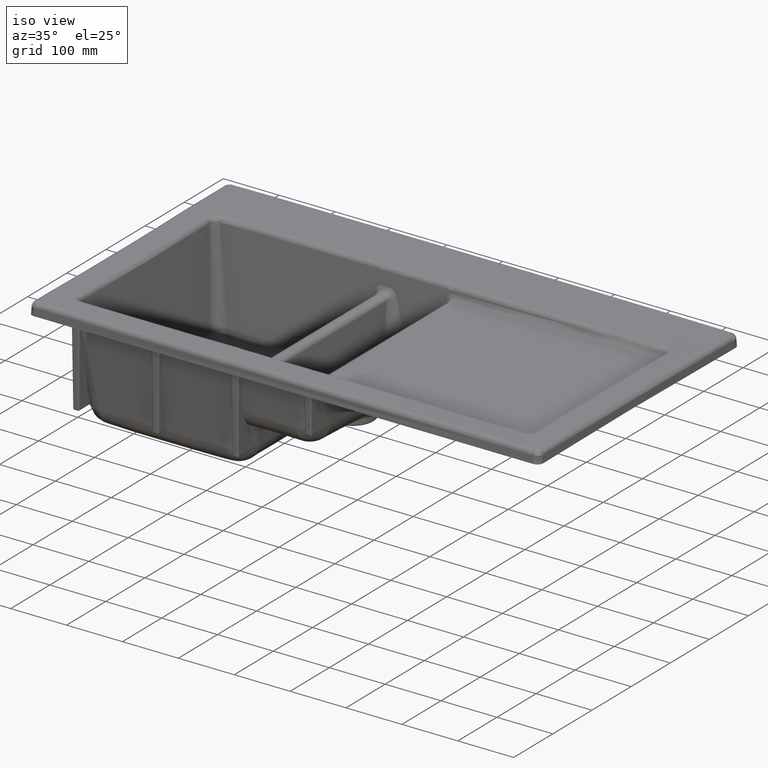
[diagram: clean part render]
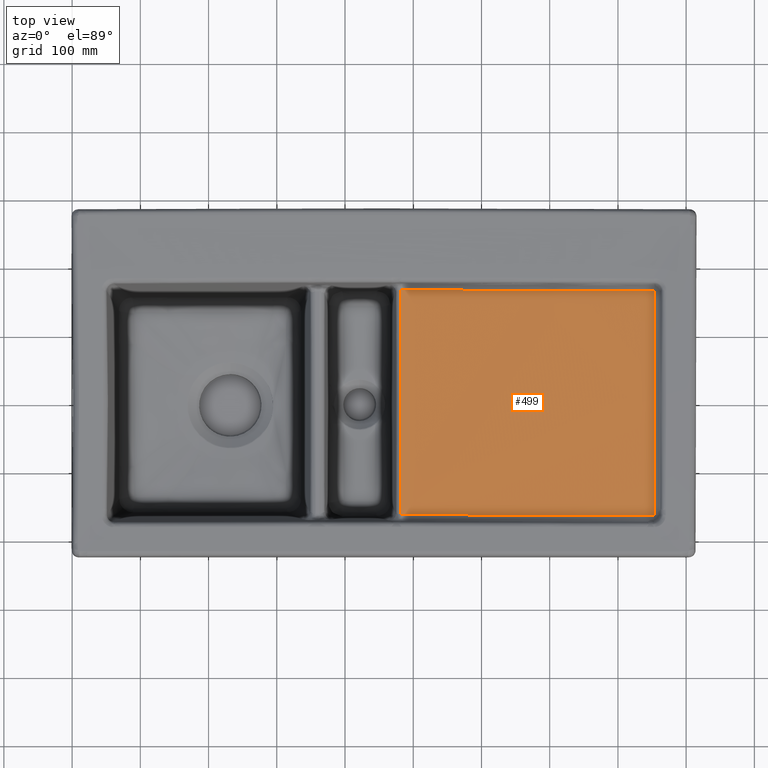
[diagram: tour spotlight — one face highlighted and labeled with its STEP entity id]
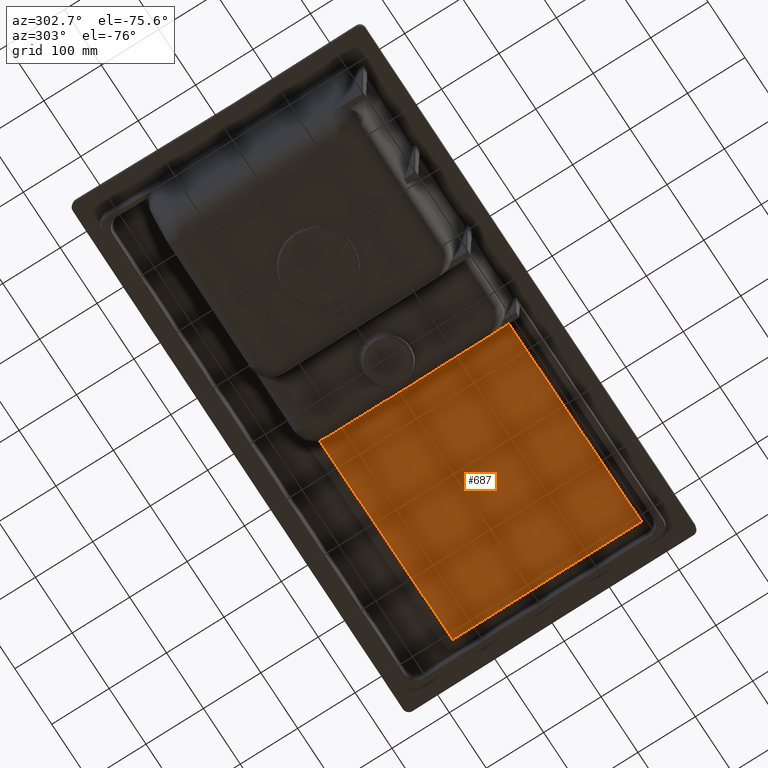
[diagram: tour spotlight — one face highlighted and labeled with its STEP entity id]
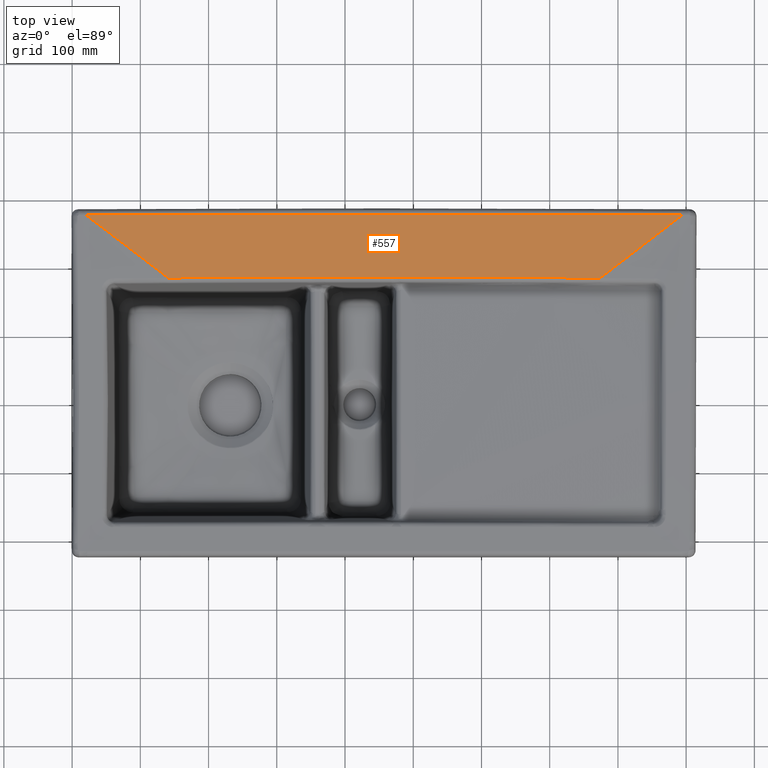
[diagram: tour spotlight — one face highlighted and labeled with its STEP entity id]
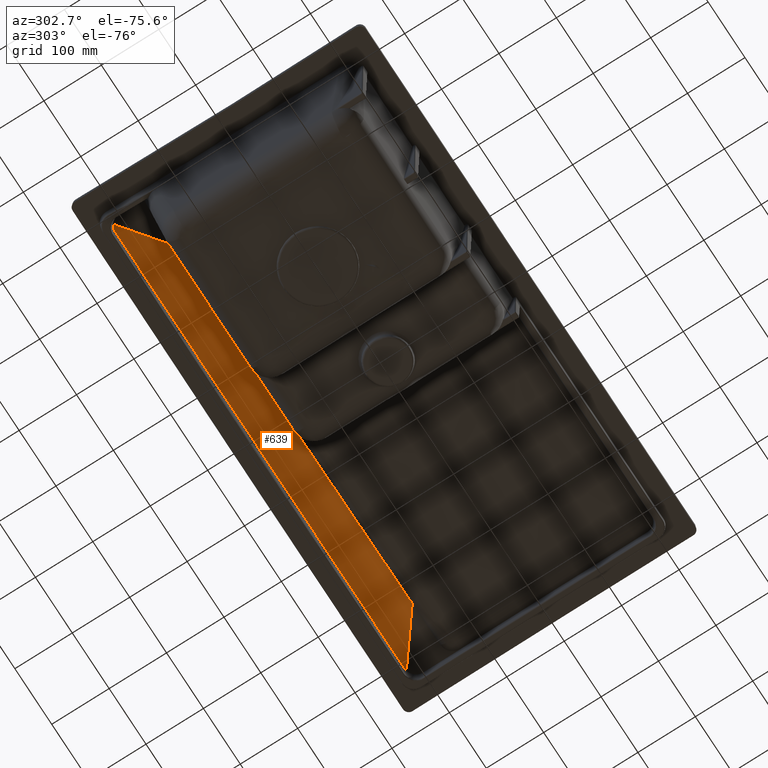
[diagram: tour spotlight — one face highlighted and labeled with its STEP entity id]
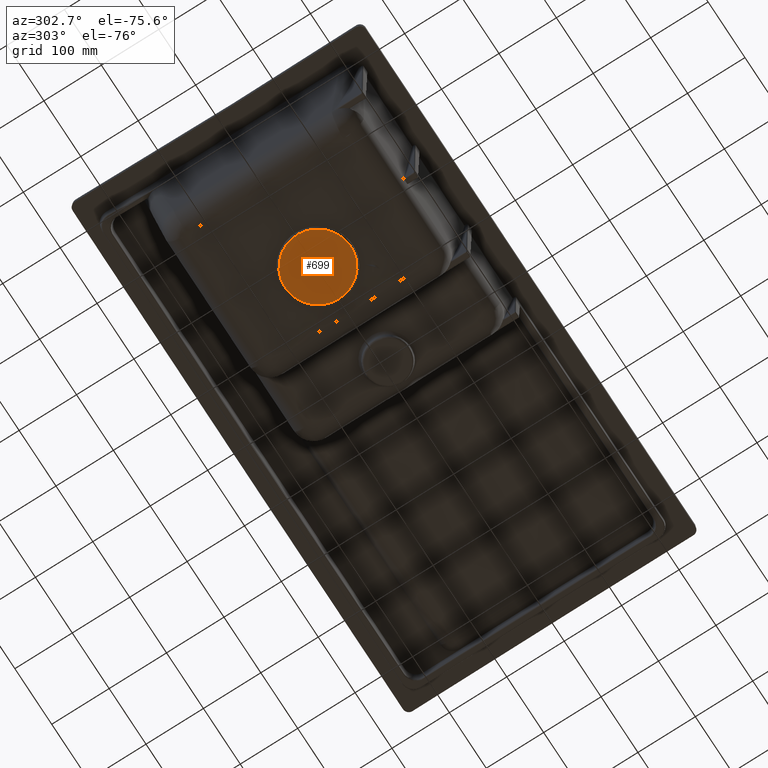
[diagram: tour spotlight — one face highlighted and labeled with its STEP entity id]
A machine part: a face-by-face anatomy tour. The part has 317 B-rep faces; the first image is the clean iso view, then the 5 largest visible faces are spotlighted one at a time (largest first), each with its STEP entity span.

Face 1 — top view, entity #499. In plain terms, the highlighted face is a freeform B-spline surface patch.
Definition (entity closure, byte-faithful):
#283=(
BOUNDED_CURVE()
B_SPLINE_CURVE(3,(#8793,#8794,#8795,#8796,#8797,#8798),.UNSPECIFIED.,.F.,
 .F.)
B_SPLINE_CURVE_WITH_KNOTS((4,2,4),(0.,0.499999999309941,1.),
 .UNSPECIFIED.)
CURVE()
GEOMETRIC_REPRESENTATION_ITEM()
RATIONAL_B_SPLINE_CURVE((0.999999451693644,0.999999453716712,0.999999454869606,
0.999999454825756,0.999999453621752,0.999999451587987))
REPRESENTATION_ITEM('')
);
#499=ADVANCED_FACE('',(#955),#779,.T.);
#779=B_SPLINE_SURFACE_WITH_KNOTS('',3,1,((#10570,#10571),(#10572,#10573),
(#10574,#10575),(#10576,#10577),(#10578,#10579),(#10580,#10581),(#10582,
#10583),(#10584,#10585),(#10586,#10587),(#10588,#10589),(#10590,#10591),
(#10592,#10593),(#10594,#10595)),.UNSPECIFIED.,.F.,.F.,.F.,(4,1,1,1,1,1,
1,1,1,1,4),(2,2),(0.,0.0145762176869947,0.109681215793361,0.204786213899727,
0.39499621011246,0.585206206325193,0.775416202537926,0.870521200644292,
0.918073699697475,0.965626198750658,1.),(0.,1.),.UNSPECIFIED.);
#955=FACE_OUTER_BOUND('',#1276,.T.);
#1276=EDGE_LOOP('',(#1813,#1814,#1815,#1816,#1817,#1818,#1819));
#1813=ORIENTED_EDGE('',*,*,#3737,.T.);
#1814=ORIENTED_EDGE('',*,*,#3738,.T.);
#1815=ORIENTED_EDGE('',*,*,#3736,.F.);
#1816=ORIENTED_EDGE('',*,*,#3680,.F.);
#1817=ORIENTED_EDGE('',*,*,#3739,.T.);
#1818=ORIENTED_EDGE('',*,*,#3740,.T.);
#1819=ORIENTED_EDGE('',*,*,#3741,.T.);
#3173=VERTEX_POINT('',#8799);
#3174=VERTEX_POINT('',#8800);
#3201=VERTEX_POINT('',#10503);
#3204=VERTEX_POINT('',#10540);
#3205=VERTEX_POINT('',#10541);
#3206=VERTEX_POINT('',#10550);
#3207=VERTEX_POINT('',#10555);
#3680=EDGE_CURVE('',#3173,#3174,#283,.T.);
#3736=EDGE_CURVE('',#3174,#3201,#4476,.T.);
#3737=EDGE_CURVE('',#3204,#3205,#4477,.T.);
#3738=EDGE_CURVE('',#3205,#3201,#4478,.T.);
#3739=EDGE_CURVE('',#3173,#3206,#4479,.T.);
#3740=EDGE_CURVE('',#3206,#3207,#4480,.T.);
#3741=EDGE_CURVE('',#3207,#3204,#4481,.T.);
#4476=B_SPLINE_CURVE_WITH_KNOTS('',3,(#10514,#10515,#10516,#10517),
 .UNSPECIFIED.,.F.,.F.,(4,4),(0.,1.),.UNSPECIFIED.);
#4477=B_SPLINE_CURVE_WITH_KNOTS('',3,(#10536,#10537,#10538,#10539),
 .UNSPECIFIED.,.F.,.F.,(4,4),(0.,1.),.UNSPECIFIED.);
#4478=B_SPLINE_CURVE_WITH_KNOTS('',3,(#10542,#10543,#10544,#10545),
 .UNSPECIFIED.,.F.,.F.,(4,4),(0.,1.),.UNSPECIFIED.);
#4479=B_SPLINE_CURVE_WITH_KNOTS('',3,(#10546,#10547,#10548,#10549),
 .UNSPECIFIED.,.F.,.F.,(4,4),(0.,1.),.UNSPECIFIED.);
#4480=B_SPLINE_CURVE_WITH_KNOTS('',3,(#10551,#10552,#10553,#10554),
 .UNSPECIFIED.,.F.,.F.,(4,4),(0.,1.),.UNSPECIFIED.);
#4481=B_SPLINE_CURVE_WITH_KNOTS('',3,(#10556,#10557,#10558,#10559,#10560,
#10561,#10562,#10563,#10564,#10565,#10566,#10567,#10568,#10569),
 .UNSPECIFIED.,.F.,.F.,(4,2,2,2,2,2,4),(0.,0.125,0.25,0.5,0.75,0.875,1.),
 .UNSPECIFIED.);
#8793=CARTESIAN_POINT('',(-17.7918068542279,-163.488346020045,-21.3578437896059));
#8794=CARTESIAN_POINT('',(-17.8065437855809,-108.615039346333,-21.3438002995863));
#8795=CARTESIAN_POINT('',(-17.8238301538591,-53.7391130862534,-21.3274678594289));
#8796=CARTESIAN_POINT('',(-17.823390218546,56.0111206221761,-21.3278832284787));
#8797=CARTESIAN_POINT('',(-17.8058518237804,110.887030341816,-21.3444554937129));
#8798=CARTESIAN_POINT('',(-17.7907590292085,165.760342545355,-21.3588425388243));
#8799=CARTESIAN_POINT('',(-17.7912832513735,-163.488346695282,-21.3578245883325));
#8800=CARTESIAN_POINT('',(-17.7907594122139,165.760346378334,-21.3588351954924));
#10503=CARTESIAN_POINT('',(204.928395905038,165.40156771485,-16.901041725831));
#10514=CARTESIAN_POINT('',(-17.7907595036527,165.760351767294,-21.3588306251663));
#10515=CARTESIAN_POINT('',(56.4489253832133,165.839131314022,-19.8740080979178));
#10516=CARTESIAN_POINT('',(130.688767453724,165.615121274665,-18.3890211030806));
#10517=CARTESIAN_POINT('',(204.928387558549,165.39885281014,-16.9009887248965));
#10536=CARTESIAN_POINT('',(354.123567291809,164.678639086295,-13.9039782293954));
#10537=CARTESIAN_POINT('',(354.124138062567,164.955214757025,-13.9082138287892));
#10538=CARTESIAN_POINT('',(353.901872364213,165.178303583952,-13.9160500972772));
#10539=CARTESIAN_POINT('',(353.624653606374,165.178161634468,-13.9215988119454));
#10540=CARTESIAN_POINT('',(354.123567291809,164.678639086295,-13.9039782293954));
#10541=CARTESIAN_POINT('',(353.624653606374,165.178161634468,-13.9215988119454));
#10542=CARTESIAN_POINT('',(353.624653606373,165.178161634467,-13.9215988119454));
#10543=CARTESIAN_POINT('',(321.561956568335,165.149153066195,-14.5631635839006));
#10544=CARTESIAN_POINT('',(271.996687662602,165.224524071472,-15.5571078882008));
#10545=CARTESIAN_POINT('',(204.928404243617,165.404285246925,-16.9010947510058));
#10546=CARTESIAN_POINT('',(-17.7918070865482,-163.488346023059,-21.3578322571569));
#10547=CARTESIAN_POINT('',(108.350197313922,-163.723505263033,-18.8167647569236));
#10548=CARTESIAN_POINT('',(231.832185439689,-164.169399928809,-16.3329590884691));
#10549=CARTESIAN_POINT('',(352.652455294749,-164.825998688771,-13.9145029999255));
#10550=CARTESIAN_POINT('',(352.652455294749,-164.825998688771,-13.9145029999255));
#10551=CARTESIAN_POINT('',(352.65245529475,-164.825998688771,-13.9145029999255));
#10552=CARTESIAN_POINT('',(352.928757371863,-164.827391789901,-13.9089707348927));
#10553=CARTESIAN_POINT('',(353.152512294427,-164.606308776025,-13.9013491431646));
#10554=CARTESIAN_POINT('',(353.153546399652,-164.329279411833,-13.8973579238987));
#10555=CARTESIAN_POINT('',(353.153546399652,-164.329279411832,-13.8973579238987));
#10556=CARTESIAN_POINT('',(353.153546399652,-164.329279411833,-13.8973579238987));
#10557=CARTESIAN_POINT('',(353.204744850539,-148.243909472614,-13.6657905844965));
#10558=CARTESIAN_POINT('',(353.254591373089,-132.457600347754,-13.3157026349338));
#10559=CARTESIAN_POINT('',(353.35160140096,-101.475607146667,-12.8517033981985));
#10560=CARTESIAN_POINT('',(353.398761892399,-86.2809461091752,-12.677706929383));
#10561=CARTESIAN_POINT('',(353.536203098896,-41.5876507524134,-12.2719851827434));
#10562=CARTESIAN_POINT('',(353.62244449505,-12.9793684602988,-12.1781850141899));
#10563=CARTESIAN_POINT('',(353.78413603398,41.8590529565848,-12.279283218324));
#10564=CARTESIAN_POINT('',(353.85958597383,68.0891232017013,-12.4727232078482));
#10565=CARTESIAN_POINT('',(353.964657794729,105.649146941325,-12.9118284883671));
#10566=CARTESIAN_POINT('',(353.998331165624,117.871619314687,-13.0845797969211));
#10567=CARTESIAN_POINT('',(354.062974456372,141.72096742489,-13.4919369758531));
#10568=CARTESIAN_POINT('',(354.093944459491,153.347871414017,-13.7305790156748));
#10569=CARTESIAN_POINT('',(354.123567291809,164.678639086295,-13.9039782293954));
#10570=CARTESIAN_POINT('',(355.428024467579,-166.810218098629,-13.8863059014047));
#10571=CARTESIAN_POINT('',(-20.0539570385785,-166.813801763557,-21.4039958217335));
#10572=CARTESIAN_POINT('',(355.432732754218,-165.184535589736,-13.8641868683499));
#10573=CARTESIAN_POINT('',(-20.0538976698763,-165.188036699258,-21.4037169138451));
#10574=CARTESIAN_POINT('',(355.468160627924,-152.951957005749,-13.687219155496));
#10575=CARTESIAN_POINT('',(-20.0534509453998,-152.95469426959,-21.4014854559422));
#10576=CARTESIAN_POINT('',(355.534301420678,-130.114745752302,-13.2122034269481));
#10577=CARTESIAN_POINT('',(-20.052616949229,-130.113803014756,-21.3954957893285));
#10578=CARTESIAN_POINT('',(355.657181337977,-87.6866288482967,-12.6073874766944));
#10579=CARTESIAN_POINT('',(-20.0510675063483,-87.6834868374641,-21.3878694189013));
#10580=CARTESIAN_POINT('',(355.810792176068,-34.6477687162715,-12.1506642289989));
#10581=CARTESIAN_POINT('',(-20.049130564783,-34.6455447844835,-21.3821104096226));
#10582=CARTESIAN_POINT('',(355.995132555573,29.0013664224859,-12.1273682317553));
#10583=CARTESIAN_POINT('',(-20.0468061419267,29.0000172401939,-21.3818166609143));
#10584=CARTESIAN_POINT('',(356.148744426123,82.0405770209931,-12.5427744815406));
#10585=CARTESIAN_POINT('',(-20.0448691873448,82.0379637123534,-21.3870546873543));
#10586=CARTESIAN_POINT('',(356.256265425906,119.165543233336,-13.0489193197608));
#10587=CARTESIAN_POINT('',(-20.0435134113075,119.164494956322,-21.3934368735788));
#10588=CARTESIAN_POINT('',(356.317701525335,140.378291725248,-13.424419981729));
#10589=CARTESIAN_POINT('',(-20.0427387385312,140.379636527151,-21.3981717142233));
#10590=CARTESIAN_POINT('',(356.359521115452,154.817827630627,-13.6997997355005));
#10591=CARTESIAN_POINT('',(-20.0422114183029,154.821098032836,-21.4016440895954));
#10592=CARTESIAN_POINT('',(356.385983402777,163.954760915166,-13.8499162084235));
#10593=CARTESIAN_POINT('',(-20.0418777445544,163.958781516039,-21.4035369692875));
#10594=CARTESIAN_POINT('',(356.397086477583,167.788443405428,-13.9048279523273));
#10595=CARTESIAN_POINT('',(-20.0417377413663,167.792678803677,-21.4042293738109));

Face 2 — auxiliary view, entity #687. In plain terms, the highlighted face is a freeform B-spline surface patch.
Definition (entity closure, byte-faithful):
#385=(
BOUNDED_CURVE()
B_SPLINE_CURVE(3,(#15864,#15865,#15866,#15867,#15868,#15869,#15870,#15871,
#15872,#15873,#15874,#15875,#15876,#15877),.UNSPECIFIED.,.F.,.F.)
B_SPLINE_CURVE_WITH_KNOTS((4,2,2,2,2,2,4),(0.,0.125,0.25,0.5,0.75,0.875,
1.),.UNSPECIFIED.)
CURVE()
GEOMETRIC_REPRESENTATION_ITEM()
RATIONAL_B_SPLINE_CURVE((1.,1.,1.,1.,1.,1.,1.,1.,1.,1.,1.,1.,1.,1.))
REPRESENTATION_ITEM('')
);
#388=(
BOUNDED_CURVE()
B_SPLINE_CURVE(3,(#15929,#15930,#15931,#15932,#15933,#15934,#15935,#15936,
#15937,#15938,#15939,#15940),.UNSPECIFIED.,.F.,.F.)
B_SPLINE_CURVE_WITH_KNOTS((4,2,2,2,2,4),(0.,0.25,0.375,0.5,0.75,1.),
 .UNSPECIFIED.)
CURVE()
GEOMETRIC_REPRESENTATION_ITEM()
RATIONAL_B_SPLINE_CURVE((1.,1.,1.,1.,1.,1.,1.,1.,1.,1.,1.,1.))
REPRESENTATION_ITEM('')
);
#390=(
BOUNDED_CURVE()
B_SPLINE_CURVE(3,(#16034,#16035,#16036,#16037,#16038,#16039,#16040,#16041,
#16042,#16043,#16044,#16045),.UNSPECIFIED.,.F.,.F.)
B_SPLINE_CURVE_WITH_KNOTS((4,2,2,2,2,4),(0.,0.25,0.375,0.5,0.75,1.),
 .UNSPECIFIED.)
CURVE()
GEOMETRIC_REPRESENTATION_ITEM()
RATIONAL_B_SPLINE_CURVE((1.,1.,1.,1.,1.,1.,1.,1.,1.,1.,1.,1.))
REPRESENTATION_ITEM('')
);
#415=(
BOUNDED_CURVE()
B_SPLINE_CURVE(3,(#19853,#19854,#19855,#19856),.UNSPECIFIED.,.F.,.F.)
B_SPLINE_CURVE_WITH_KNOTS((4,4),(0.,1.),.UNSPECIFIED.)
CURVE()
GEOMETRIC_REPRESENTATION_ITEM()
RATIONAL_B_SPLINE_CURVE((1.,1.,1.,1.))
REPRESENTATION_ITEM('')
);
#416=(
BOUNDED_CURVE()
B_SPLINE_CURVE(3,(#19933,#19934,#19935,#19936),.UNSPECIFIED.,.F.,.F.)
B_SPLINE_CURVE_WITH_KNOTS((4,4),(0.,1.),.UNSPECIFIED.)
CURVE()
GEOMETRIC_REPRESENTATION_ITEM()
RATIONAL_B_SPLINE_CURVE((1.,1.,1.,1.))
REPRESENTATION_ITEM('')
);
#417=(
BOUNDED_CURVE()
B_SPLINE_CURVE(3,(#19938,#19939,#19940,#19941),.UNSPECIFIED.,.F.,.F.)
B_SPLINE_CURVE_WITH_KNOTS((4,4),(0.,1.),.UNSPECIFIED.)
CURVE()
GEOMETRIC_REPRESENTATION_ITEM()
RATIONAL_B_SPLINE_CURVE((1.,1.,1.,1.))
REPRESENTATION_ITEM('')
);
#687=ADVANCED_FACE('',(#1141),#848,.F.);
#848=B_SPLINE_SURFACE_WITH_KNOTS('',3,3,((#19947,#19948,#19949,#19950),
(#19951,#19952,#19953,#19954),(#19955,#19956,#19957,#19958),(#19959,#19960,
#19961,#19962),(#19963,#19964,#19965,#19966),(#19967,#19968,#19969,#19970),
(#19971,#19972,#19973,#19974),(#19975,#19976,#19977,#19978),(#19979,#19980,
#19981,#19982),(#19983,#19984,#19985,#19986),(#19987,#19988,#19989,#19990),
(#19991,#19992,#19993,#19994),(#19995,#19996,#19997,#19998),(#19999,#20000,
#20001,#20002),(#20003,#20004,#20005,#20006),(#20007,#20008,#20009,#20010),
(#20011,#20012,#20013,#20014),(#20015,#20016,#20017,#20018),(#20019,#20020,
#20021,#20022)),.UNSPECIFIED.,.F.,.F.,.F.,(4,3,3,3,3,3,4),(4,4),(0.,0.12500059338803,
0.250002465267118,0.500006209025294,0.750009952783471,0.875011824662559,
1.),(0.,1.),.UNSPECIFIED.);
#1141=FACE_OUTER_BOUND('',#1466,.T.);
#1466=EDGE_LOOP('',(#2691,#2692,#2693,#2694,#2695,#2696,#2697,#2698));
#2691=ORIENTED_EDGE('',*,*,#4031,.F.);
#2692=ORIENTED_EDGE('',*,*,#4034,.F.);
#2693=ORIENTED_EDGE('',*,*,#4190,.F.);
#2694=ORIENTED_EDGE('',*,*,#4198,.F.);
#2695=ORIENTED_EDGE('',*,*,#4199,.F.);
#2696=ORIENTED_EDGE('',*,*,#4200,.T.);
#2697=ORIENTED_EDGE('',*,*,#4037,.F.);
#2698=ORIENTED_EDGE('',*,*,#4041,.F.);
#3380=VERTEX_POINT('',#15863);
#3381=VERTEX_POINT('',#15878);
#3383=VERTEX_POINT('',#15928);
#3384=VERTEX_POINT('',#15984);
#3385=VERTEX_POINT('',#15991);
#3476=VERTEX_POINT('',#19851);
#3482=VERTEX_POINT('',#19937);
#3483=VERTEX_POINT('',#19942);
#4031=EDGE_CURVE('',#3380,#3381,#385,.T.);
#4034=EDGE_CURVE('',#3383,#3380,#388,.T.);
#4037=EDGE_CURVE('',#3384,#3385,#4664,.T.);
#4041=EDGE_CURVE('',#3381,#3384,#390,.T.);
#4190=EDGE_CURVE('',#3476,#3383,#415,.T.);
#4198=EDGE_CURVE('',#3482,#3476,#416,.T.);
#4199=EDGE_CURVE('',#3483,#3482,#417,.T.);
#4200=EDGE_CURVE('',#3483,#3385,#4799,.T.);
#4664=B_SPLINE_CURVE_WITH_KNOTS('',3,(#15985,#15986,#15987,#15988,#15989,
#15990),.UNSPECIFIED.,.F.,.F.,(4,2,4),(0.,0.5,1.),.UNSPECIFIED.);
#4799=B_SPLINE_CURVE_WITH_KNOTS('',3,(#19943,#19944,#19945,#19946),
 .UNSPECIFIED.,.F.,.F.,(4,4),(0.,1.),.UNSPECIFIED.);
#15863=CARTESIAN_POINT('',(353.44106697144,-164.124393219028,-28.1929442012013));
#15864=CARTESIAN_POINT('',(353.441068072777,-164.124392430197,-28.1929989592717));
#15865=CARTESIAN_POINT('',(353.492451247882,-150.255474732722,-27.9931943856253));
#15866=CARTESIAN_POINT('',(353.552342614888,-136.582346974455,-27.6939714086012));
#15867=CARTESIAN_POINT('',(353.66122281573,-109.265393978588,-27.2544331085729));
#15868=CARTESIAN_POINT('',(353.711258357835,-95.581354918173,-27.0832617167359));
#15869=CARTESIAN_POINT('',(353.858256036014,-54.5385707188388,-26.6570679457602));
#15870=CARTESIAN_POINT('',(353.948508369986,-27.1810985347581,-26.5103766267435));
#15871=CARTESIAN_POINT('',(354.109951897827,27.5369315725375,-26.5111445831795));
#15872=CARTESIAN_POINT('',(354.181305851804,54.8949217017823,-26.657550827436));
#15873=CARTESIAN_POINT('',(354.276365622447,95.9361937663368,-27.0844019755044));
#15874=CARTESIAN_POINT('',(354.306541728998,109.614992923749,-27.2583630563721));
#15875=CARTESIAN_POINT('',(354.359155734077,136.943958333172,-27.6985863540371));
#15876=CARTESIAN_POINT('',(354.382038473019,150.619669591786,-27.9874685933341));
#15877=CARTESIAN_POINT('',(354.410098853961,164.459121163804,-28.1994219631728));
#15878=CARTESIAN_POINT('',(354.410100048168,164.459120253289,-28.19948154461));
#15928=CARTESIAN_POINT('',(352.939709504038,-164.62384473299,-28.210151041444));
#15929=CARTESIAN_POINT('',(352.939710252679,-164.623844203695,-28.21018829841));
#15930=CARTESIAN_POINT('',(353.00494981178,-164.624165540038,-28.2088819303114));
#15931=CARTESIAN_POINT('',(353.070296064072,-164.611598962811,-28.2073912476111));
#15932=CARTESIAN_POINT('',(353.161212106191,-164.574453609748,-28.2050382617345));
#15933=CARTESIAN_POINT('',(353.189982964623,-164.559239431558,-28.2042445420156));
#15934=CARTESIAN_POINT('',(353.244471734431,-164.523175868595,-28.2026381111481));
#15935=CARTESIAN_POINT('',(353.27031662558,-164.502113350906,-28.2018198161426));
#15936=CARTESIAN_POINT('',(353.339834866663,-164.432945734114,-28.1994400858973));
#15937=CARTESIAN_POINT('',(353.377305397256,-164.377011228793,-28.1978910240194));
#15938=CARTESIAN_POINT('',(353.42754959264,-164.256136909756,-28.1951566552593));
#15939=CARTESIAN_POINT('',(353.440826190146,-164.189676531915,-28.1939394843601));
#15940=CARTESIAN_POINT('',(353.441068072777,-164.124392430196,-28.1929989592717));
#15984=CARTESIAN_POINT('',(353.910899092042,164.961223527898,-28.2171300236345));
#15985=CARTESIAN_POINT('',(353.910898244302,164.961224167719,-28.2170876858097));
#15986=CARTESIAN_POINT('',(293.600515116353,164.941048492095,-29.4244019003921));
#15987=CARTESIAN_POINT('',(233.29020898557,165.167693801858,-30.6350677149772));
#15988=CARTESIAN_POINT('',(112.669534171462,165.597009827771,-33.0522558831857));
#15989=CARTESIAN_POINT('',(52.3589991590791,165.770274751286,-34.2586486079752));
#15990=CARTESIAN_POINT('',(-7.95126406935765,165.760014828912,-35.4648944568782));
#15991=CARTESIAN_POINT('',(-7.95126045082992,165.759992833579,-35.4648985595026));
#16034=CARTESIAN_POINT('',(354.410098853961,164.459121163805,-28.1994219631728));
#16035=CARTESIAN_POINT('',(354.410232201535,164.524908698861,-28.2004295104026));
#16036=CARTESIAN_POINT('',(354.397397112909,164.59084205657,-28.2016970673848));
#16037=CARTESIAN_POINT('',(354.359896962579,164.682257185199,-28.2038464323517));
#16038=CARTESIAN_POINT('',(354.344569213616,164.711162254692,-28.2045950941808));
#16039=CARTESIAN_POINT('',(354.308291750268,164.765857329374,-28.2061566553674));
#16040=CARTESIAN_POINT('',(354.287161246673,164.79172859967,-28.2069744049838));
#16041=CARTESIAN_POINT('',(354.217908176147,164.861209730414,-28.2094201435372));
#16042=CARTESIAN_POINT('',(354.162048687435,164.898509072639,-28.2111059737115));
#16043=CARTESIAN_POINT('',(354.041696990363,164.948268592512,-28.2142721082093));
#16044=CARTESIAN_POINT('',(353.975631422616,164.961245901102,-28.2157918357295));
#16045=CARTESIAN_POINT('',(353.910898244302,164.961224167719,-28.2170876858097));
#19851=CARTESIAN_POINT('',(-7.90246626092558,-163.49745135265,-35.4615180258104));
#19853=CARTESIAN_POINT('',(-7.90246588671824,-163.497449305939,-35.4615214573395));
#19854=CARTESIAN_POINT('',(112.37903424126,-163.665646066911,-33.038641370487));
#19855=CARTESIAN_POINT('',(232.659976601646,-164.031334195668,-30.6186892240544));
#19856=CARTESIAN_POINT('',(352.939710252678,-164.623844203695,-28.2101882984101));
#19933=CARTESIAN_POINT('',(-7.5361050405832,-158.630861394227,-35.450759454306));
#19934=CARTESIAN_POINT('',(-7.53587997260779,-160.273538178479,-35.4519527047157));
#19935=CARTESIAN_POINT('',(-7.65881433404545,-161.895741580902,-35.4555816331559));
#19936=CARTESIAN_POINT('',(-7.90246636206597,-163.497452484755,-35.4615216035234));
#19937=CARTESIAN_POINT('',(-7.53610523304211,-158.630862608754,-35.4507499867992));
#19938=CARTESIAN_POINT('',(-7.53569666575226,160.594033227125,-35.4529207018408));
#19939=CARTESIAN_POINT('',(-7.55055749020829,54.18762965421,-35.3742307346665));
#19940=CARTESIAN_POINT('',(-7.55070476923385,-52.2244305521945,-35.3734655993946));
#19941=CARTESIAN_POINT('',(-7.5361050402512,-158.630863809466,-35.4507594560605));
#19942=CARTESIAN_POINT('',(-7.5356966131745,160.594078039099,-35.4529339439086));
#19943=CARTESIAN_POINT('',(-7.53569646129684,160.595051518799,-35.4529463691053));
#19944=CARTESIAN_POINT('',(-7.53619293316711,162.324626174755,-35.454229223051));
#19945=CARTESIAN_POINT('',(-7.6747111613245,164.04627326589,-35.4582459762489));
#19946=CARTESIAN_POINT('',(-7.95125682462297,165.759970568594,-35.4649001933945));
#19947=CARTESIAN_POINT('',(355.642052559633,-166.616105553495,-28.1835688010018));
#19948=CARTESIAN_POINT('',(233.707470493206,-166.679364735236,-30.625717857293));
#19949=CARTESIAN_POINT('',(111.772880331036,-166.742637278484,-33.0674625538652));
#19950=CARTESIAN_POINT('',(-10.1617179312963,-166.805907370651,-35.5088026775209));
#19951=CARTESIAN_POINT('',(355.689498228369,-152.604994256874,-27.9928296086917));
#19952=CARTESIAN_POINT('',(233.741982718974,-152.690565520644,-30.4964098343117));
#19953=CARTESIAN_POINT('',(111.794453035042,-152.776162900262,-32.9992921124679));
#19954=CARTESIAN_POINT('',(-10.1530908328797,-152.861753358577,-35.5014759906679));
#19955=CARTESIAN_POINT('',(355.74134761877,-138.656718440353,-27.6856027064533));
#19956=CARTESIAN_POINT('',(233.78089275229,-138.744453247809,-30.2877309972342));
#19957=CARTESIAN_POINT('',(111.820420941606,-138.832220929057,-32.8890700929812));
#19958=CARTESIAN_POINT('',(-10.1400678268135,-138.919979422209,-35.4896193650908));
#19959=CARTESIAN_POINT('',(355.790339036944,-124.754658247907,-27.4559396397109));
#19960=CARTESIAN_POINT('',(233.816930205076,-124.829744170922,-30.1314608360316));
#19961=CARTESIAN_POINT('',(111.843508313312,-124.904852899236,-32.8063863757348));
#19962=CARTESIAN_POINT('',(-10.129926647298,-124.979956155697,-35.4807158476998));
#19963=CARTESIAN_POINT('',(355.839330956196,-110.852455866859,-27.2262742240023));
#19964=CARTESIAN_POINT('',(233.852968026449,-110.914892776061,-29.9751890765166));
#19965=CARTESIAN_POINT('',(111.866595921153,-110.977342421968,-32.7237018128093));
#19966=CARTESIAN_POINT('',(-10.1197853640597,-111.0397903123,-35.4718122392446));
#19967=CARTESIAN_POINT('',(355.886328972486,-96.9339048526405,-27.0491324216677));
#19968=CARTESIAN_POINT('',(233.887015763279,-96.9889318693881,-29.8547245451833));
#19969=CARTESIAN_POINT('',(111.887695150308,-97.0439689433084,-32.6599959527621));
#19970=CARTESIAN_POINT('',(-10.1116328699786,-97.0990051756186,-35.4649464875021));
#19971=CARTESIAN_POINT('',(355.932199341754,-83.0164733360366,-26.9019965390982));
#19972=CARTESIAN_POINT('',(233.919935693588,-83.063731577372,-29.7546539731033));
#19973=CARTESIAN_POINT('',(111.907666371781,-83.1109970701721,-32.6070686965524));
#19974=CARTESIAN_POINT('',(-10.1046086261438,-83.1582624610265,-35.4592406012155));
#19975=CARTESIAN_POINT('',(356.023940080288,-55.1816103028291,-26.6077247739593));
#19976=CARTESIAN_POINT('',(233.985775554206,-55.2133309933396,-29.5545128289434));
#19977=CARTESIAN_POINT('',(111.947608814729,-55.2450533238997,-32.501214184133));
#19978=CARTESIAN_POINT('',(-10.0905601384741,-55.2767770318422,-35.4478288286423));
#19979=CARTESIAN_POINT('',(356.110307214021,-27.3491579791753,-26.4562255338095));
#19980=CARTESIAN_POINT('',(234.046243037735,-27.364565553198,-29.4514631827125));
#19981=CARTESIAN_POINT('',(111.982178909817,-27.3799738623894,-32.4467028035188));
#19982=CARTESIAN_POINT('',(-10.0818851697191,-27.3953829057646,-35.4419443967741));
#19983=CARTESIAN_POINT('',(356.190918738017,0.484034195230337,-26.4577690026627));
#19984=CARTESIAN_POINT('',(234.100959427214,0.484702516630951,-29.4525147770791));
#19985=CARTESIAN_POINT('',(112.011000115546,0.485370864780717,-32.4472605162321));
#19986=CARTESIAN_POINT('',(-10.078959196987,0.486039239670451,-35.4420062201119));
#19987=CARTESIAN_POINT('',(356.271530262013,28.3172263696359,-26.4593124715159));
#19988=CARTESIAN_POINT('',(234.155675816693,28.3339705864599,-29.4535663714458));
#19989=CARTESIAN_POINT('',(112.039821321275,28.3507155919509,-32.4478182289455));
#19990=CARTESIAN_POINT('',(-10.076033224255,28.3674613851055,-35.4420680434497));
#19991=CARTESIAN_POINT('',(356.346428424607,56.150538530408,-26.6127797247614));
#19992=CARTESIAN_POINT('',(234.204683348588,56.1833200612929,-29.5579561804179));
#19993=CARTESIAN_POINT('',(112.062935922414,56.2161033627374,-32.5030404180562));
#19994=CARTESIAN_POINT('',(-10.0788138542772,56.2488880777946,-35.4480324259128));
#19995=CARTESIAN_POINT('',(356.415937692456,83.9848202211029,-26.9097306132971));
#19996=CARTESIAN_POINT('',(234.248306227401,84.033325523065,-29.7599242943755));
#19997=CARTESIAN_POINT('',(112.080668848134,84.0818385592284,-32.6098644299102));
#19998=CARTESIAN_POINT('',(-10.0869744480525,84.1303514782232,-35.4595509020479));
#19999=CARTESIAN_POINT('',(356.45069232638,97.9019610664504,-27.058206057565));
#20000=CARTESIAN_POINT('',(234.270117666807,97.958328253951,-29.8609083513542));
#20001=CARTESIAN_POINT('',(112.089535310994,98.014706157474,-32.6632764358372));
#20002=CARTESIAN_POINT('',(-10.0910547449401,98.0710831784375,-35.4653101401154));
#20003=CARTESIAN_POINT('',(356.484199694112,111.81520355454,-27.2398229313842));
#20004=CARTESIAN_POINT('',(234.290683443576,111.880682267311,-29.9844448571636));
#20005=CARTESIAN_POINT('',(112.097157100049,111.946175960807,-32.7286217895442));
#20006=CARTESIAN_POINT('',(-10.0963793419423,112.011667233697,-35.4723534848582));
#20007=CARTESIAN_POINT('',(356.515848140678,125.723188360175,-27.4707578772877));
#20008=CARTESIAN_POINT('',(234.309393176169,125.799462495415,-30.1415508745318));
#20009=CARTESIAN_POINT('',(112.102924863282,125.875760211644,-32.8117328048686));
#20010=CARTESIAN_POINT('',(-10.1035568072968,125.952052127119,-35.4813032411586));
#20011=CARTESIAN_POINT('',(356.547493119503,139.629649258286,-27.7016675194892));
#20012=CARTESIAN_POINT('',(234.328100858723,139.716717633133,-30.2986396776849));
#20013=CARTESIAN_POINT('',(112.108691994538,139.803818188289,-32.8948347136616));
#20014=CARTESIAN_POINT('',(-10.1107334862114,139.890909562917,-35.490252016828));
#20015=CARTESIAN_POINT('',(356.576608531153,153.559288218108,-28.0009172152904));
#20016=CARTESIAN_POINT('',(234.344271829611,153.649721779083,-30.5019947457145));
#20017=CARTESIAN_POINT('',(112.111919366285,153.740187011027,-33.0022931354336));
#20018=CARTESIAN_POINT('',(-10.120448871339,153.8306448464,-35.5018117835441));
#20019=CARTESIAN_POINT('',(356.609477154609,167.571564153897,-28.2017935544742));
#20020=CARTESIAN_POINT('',(234.364181607048,167.63886984783,-30.6381603971777));
#20021=CARTESIAN_POINT('',(112.118876978118,167.706191615238,-33.0740713934478));
#20022=CARTESIAN_POINT('',(-10.1264367378592,167.773510528146,-35.5095262690172));

Face 3 — top view, entity #557. In plain terms, the highlighted face is a freeform B-spline surface patch.
Definition (entity closure, byte-faithful):
#329=(
BOUNDED_CURVE()
B_SPLINE_CURVE(3,(#11944,#11945,#11946,#11947),.UNSPECIFIED.,.F.,.F.)
B_SPLINE_CURVE_WITH_KNOTS((4,4),(0.,1.),.UNSPECIFIED.)
CURVE()
GEOMETRIC_REPRESENTATION_ITEM()
RATIONAL_B_SPLINE_CURVE((1.,1.,1.,1.))
REPRESENTATION_ITEM('')
);
#332=(
BOUNDED_CURVE()
B_SPLINE_CURVE(3,(#11968,#11969,#11970,#11971),.UNSPECIFIED.,.F.,.F.)
B_SPLINE_CURVE_WITH_KNOTS((4,4),(0.,1.),.UNSPECIFIED.)
CURVE()
GEOMETRIC_REPRESENTATION_ITEM()
RATIONAL_B_SPLINE_CURVE((1.,1.,1.,1.))
REPRESENTATION_ITEM('')
);
#334=(
BOUNDED_CURVE()
B_SPLINE_CURVE(3,(#11988,#11989,#11990,#11991),.UNSPECIFIED.,.F.,.F.)
B_SPLINE_CURVE_WITH_KNOTS((4,4),(0.,1.),.UNSPECIFIED.)
CURVE()
GEOMETRIC_REPRESENTATION_ITEM()
RATIONAL_B_SPLINE_CURVE((1.,1.,1.,1.))
REPRESENTATION_ITEM('')
);
#336=(
BOUNDED_CURVE()
B_SPLINE_CURVE(3,(#12008,#12009,#12010,#12011,#12012,#12013),
 .UNSPECIFIED.,.F.,.F.)
B_SPLINE_CURVE_WITH_KNOTS((4,2,4),(0.,0.345649475525478,1.),
 .UNSPECIFIED.)
CURVE()
GEOMETRIC_REPRESENTATION_ITEM()
RATIONAL_B_SPLINE_CURVE((1.,1.,1.,1.,1.,1.))
REPRESENTATION_ITEM('')
);
#337=(
BOUNDED_CURVE()
B_SPLINE_CURVE(3,(#12144,#12145,#12146,#12147,#12148,#12149),
 .UNSPECIFIED.,.F.,.F.)
B_SPLINE_CURVE_WITH_KNOTS((4,2,4),(0.,0.5,1.),.UNSPECIFIED.)
CURVE()
GEOMETRIC_REPRESENTATION_ITEM()
RATIONAL_B_SPLINE_CURVE((1.,1.,1.,1.,1.,1.))
REPRESENTATION_ITEM('')
);
#557=ADVANCED_FACE('',(#1013),#799,.F.);
#799=B_SPLINE_SURFACE_WITH_KNOTS('',3,1,((#12731,#12732),(#12733,#12734),
(#12735,#12736),(#12737,#12738),(#12739,#12740),(#12741,#12742),(#12743,
#12744),(#12745,#12746),(#12747,#12748),(#12749,#12750),(#12751,#12752),
(#12753,#12754)),.UNSPECIFIED.,.F.,.F.,.F.,(4,1,1,1,1,1,1,1,1,4),(2,2),
(0.,0.0625,0.125,0.25,0.375,0.5,0.625,0.75,0.875,1.),(0.,1.),
 .UNSPECIFIED.);
#1013=FACE_OUTER_BOUND('',#1334,.T.);
#1334=EDGE_LOOP('',(#2080,#2081,#2082,#2083,#2084,#2085,#2086,#2087,#2088));
#2080=ORIENTED_EDGE('',*,*,#3823,.F.);
#2081=ORIENTED_EDGE('',*,*,#3826,.F.);
#2082=ORIENTED_EDGE('',*,*,#3828,.F.);
#2083=ORIENTED_EDGE('',*,*,#3830,.F.);
#2084=ORIENTED_EDGE('',*,*,#3831,.F.);
#2085=ORIENTED_EDGE('',*,*,#3862,.T.);
#2086=ORIENTED_EDGE('',*,*,#3574,.F.);
#2087=ORIENTED_EDGE('',*,*,#3863,.T.);
#2088=ORIENTED_EDGE('',*,*,#3835,.F.);
#3096=VERTEX_POINT('',#5103);
#3097=VERTEX_POINT('',#5198);
#3251=VERTEX_POINT('',#11943);
#3252=VERTEX_POINT('',#11948);
#3253=VERTEX_POINT('',#11967);
#3254=VERTEX_POINT('',#11987);
#3255=VERTEX_POINT('',#12007);
#3256=VERTEX_POINT('',#12038);
#3258=VERTEX_POINT('',#12150);
#3574=EDGE_CURVE('',#3096,#3097,#4355,.T.);
#3823=EDGE_CURVE('',#3251,#3252,#329,.T.);
#3826=EDGE_CURVE('',#3253,#3251,#332,.T.);
#3828=EDGE_CURVE('',#3254,#3253,#334,.T.);
#3830=EDGE_CURVE('',#3255,#3254,#336,.T.);
#3831=EDGE_CURVE('',#3256,#3255,#4527,.T.);
#3835=EDGE_CURVE('',#3252,#3258,#337,.T.);
#3862=EDGE_CURVE('',#3256,#3097,#4536,.T.);
#3863=EDGE_CURVE('',#3096,#3258,#4537,.T.);
#4355=B_SPLINE_CURVE_WITH_KNOTS('',3,(#5104,#5105,#5106,#5107,#5108,#5109,
#5110,#5111,#5112,#5113,#5114,#5115,#5116,#5117,#5118,#5119,#5120,#5121,
#5122,#5123,#5124,#5125,#5126,#5127,#5128,#5129,#5130,#5131,#5132,#5133,
#5134,#5135,#5136,#5137,#5138,#5139,#5140,#5141,#5142,#5143,#5144,#5145,
#5146,#5147,#5148,#5149,#5150,#5151,#5152,#5153,#5154,#5155,#5156,#5157,
#5158,#5159,#5160,#5161,#5162,#5163,#5164,#5165,#5166,#5167,#5168,#5169,
#5170,#5171,#5172,#5173,#5174,#5175,#5176,#5177,#5178,#5179,#5180,#5181,
#5182,#5183,#5184,#5185,#5186,#5187,#5188,#5189,#5190,#5191,#5192,#5193,
#5194,#5195,#5196,#5197),.UNSPECIFIED.,.F.,.F.,(4,2,2,2,1,1,1,1,2,2,2,2,
1,1,1,1,2,2,2,2,1,1,1,2,2,2,2,2,1,1,1,2,2,2,2,1,1,1,1,1,2,2,2,2,2,1,1,1,
2,2,2,2,1,1,1,1,1,1,2,2,4),(0.,0.0624999999999968,0.0937499999999952,0.109374999999994,
0.117187499999994,0.121093749999994,0.123046874999994,0.124023437499994,
0.124511718749994,0.124999999999994,0.156249999999996,0.171874999999997,
0.179687499999997,0.183593749999997,0.185546874999997,0.186523437499998,
0.187011718749998,0.187499999999998,0.218749999999999,0.234375,0.242187500000001,
0.246093750000001,0.248046875000001,0.249023437500001,0.250000000000001,
0.374999999999996,0.437499999999993,0.468749999999991,0.484374999999991,
0.49218749999999,0.49609374999999,0.49804687499999,0.49999999999999,0.562499999999987,
0.593749999999985,0.609374999999984,0.617187499999984,0.621093749999984,
0.623046874999984,0.624023437499984,0.624511718749984,0.624999999999984,
0.687499999999983,0.718749999999983,0.734374999999982,0.742187499999982,
0.746093749999982,0.748046874999982,0.749023437499982,0.749999999999982,
0.812499999999976,0.843749999999973,0.859374999999972,0.867187499999971,
0.871093749999971,0.873046874999971,0.87402343749997,0.87451171874997,0.87475585937497,
0.87499999999997,1.),.UNSPECIFIED.);
#4527=B_SPLINE_CURVE_WITH_KNOTS('',3,(#12032,#12033,#12034,#12035,#12036,
#12037),.UNSPECIFIED.,.F.,.F.,(4,1,1,4),(0.,0.25,0.5,1.),.UNSPECIFIED.);
#4536=B_SPLINE_CURVE_WITH_KNOTS('',3,(#12724,#12725,#12726,#12727,#12728),
 .UNSPECIFIED.,.F.,.F.,(4,1,4),(0.,0.466893186441507,1.),.UNSPECIFIED.);
#4537=B_SPLINE_CURVE_WITH_KNOTS('',1,(#12729,#12730),.UNSPECIFIED.,.F.,
 .F.,(2,2),(0.,1.),.UNSPECIFIED.);
#5103=CARTESIAN_POINT('',(-479.460525825503,275.269838281722,-0.153910075854913));
#5104=CARTESIAN_POINT('',(-479.460525822879,275.269838665843,-0.153956803003325));
#5105=CARTESIAN_POINT('',(-459.433944266555,275.265697367846,-0.152866425683411));
#5106=CARTESIAN_POINT('',(-440.324180903002,275.293970069937,-0.153784714340358));
#5107=CARTESIAN_POINT('',(-413.033476506292,275.368551093399,-0.153788441905159));
#5108=CARTESIAN_POINT('',(-404.165576839259,275.398605804093,-0.153803647518729));
#5109=CARTESIAN_POINT('',(-391.207194482698,275.450037682814,-0.153833995774651));
#5110=CARTESIAN_POINT('',(-386.944982984049,275.46826411561,-0.153843934586962));
#5111=CARTESIAN_POINT('',(-380.637555860493,275.497249312348,-0.153854632345388));
#5112=CARTESIAN_POINT('',(-377.505314866113,275.512155389944,-0.153858968285273));
#5113=CARTESIAN_POINT('',(-373.888613735898,275.530294330635,-0.153861787565871));
#5114=CARTESIAN_POINT('',(-372.089658437171,275.539555352375,-0.153862604845692));
#5115=CARTESIAN_POINT('',(-371.192529629118,275.544234328842,-0.153862861709366));
#5116=CARTESIAN_POINT('',(-370.808549179523,275.546250055232,-0.153862938935624));
#5117=CARTESIAN_POINT('',(-370.552674063394,275.547596202654,-0.15386298308397));
#5118=CARTESIAN_POINT('',(-370.372289409263,275.548547857582,-0.153863007543664));
#5119=CARTESIAN_POINT('',(-365.476314787531,275.57441726242,-0.153863570374205));
#5120=CARTESIAN_POINT('',(-358.51750368141,275.613707115794,-0.153855543837944));
#5121=CARTESIAN_POINT('',(-344.872203356743,275.693099583875,-0.15385029961689));
#5122=CARTESIAN_POINT('',(-339.789254717708,275.722972925516,-0.153853268764857));
#5123=CARTESIAN_POINT('',(-331.363058503389,275.772921231272,-0.15386003809866));
#5124=CARTESIAN_POINT('',(-326.949517206546,275.799180985379,-0.153862935231461));
#5125=CARTESIAN_POINT('',(-321.449603181419,275.832074763229,-0.153863163137253));
#5126=CARTESIAN_POINT('',(-318.611948509567,275.849086188543,-0.15386277920409));
#5127=CARTESIAN_POINT('',(-317.171196436257,275.857732972392,-0.153862545313181));
#5128=CARTESIAN_POINT('',(-316.549033064561,275.861468954852,-0.153862447745937));
#5129=CARTESIAN_POINT('',(-316.133213434862,275.863966323291,-0.15386238478375));
#5130=CARTESIAN_POINT('',(-315.894796608506,275.865398514238,-0.153862350260739));
#5131=CARTESIAN_POINT('',(-304.261819499778,275.935289559013,-0.153860754722652));
#5132=CARTESIAN_POINT('',(-293.986371554188,275.994688063674,-0.15386980410541));
#5133=CARTESIAN_POINT('',(-280.341041585967,276.069901261201,-0.153867430914153));
#5134=CARTESIAN_POINT('',(-276.087241318183,276.092648531365,-0.153866869652392));
#5135=CARTESIAN_POINT('',(-270.148525561008,276.123277997256,-0.153866456595521));
#5136=CARTESIAN_POINT('',(-267.289664047185,276.137719543741,-0.153866342983922));
#5137=CARTESIAN_POINT('',(-264.147699474502,276.153035244426,-0.153866399495078));
#5138=CARTESIAN_POINT('',(-262.625061266182,276.160309069664,-0.153866491377703));
#5139=CARTESIAN_POINT('',(-261.982861541023,276.163344038423,-0.153866546895782));
#5140=CARTESIAN_POINT('',(-261.557030510233,276.165349032144,-0.153866587824282));
#5141=CARTESIAN_POINT('',(-261.386675743615,276.166148866817,-0.153866605394394));
#5142=CARTESIAN_POINT('',(-228.875698176327,276.318068977532,-0.153870399298354));
#5143=CARTESIAN_POINT('',(-194.551828656269,276.421491365525,-0.15375300136306));
#5144=CARTESIAN_POINT('',(-139.970375072292,276.523749942575,-0.153742427032083));
#5145=CARTESIAN_POINT('',(-121.26045671451,276.549125897048,-0.15375960700037));
#5146=CARTESIAN_POINT('',(-92.4212193814577,276.572383219872,-0.153807690622812));
#5147=CARTESIAN_POINT('',(-82.6790817435499,276.577670602964,-0.153824003550263));
#5148=CARTESIAN_POINT('',(-67.8722731095905,276.581775962896,-0.153846441247132));
#5149=CARTESIAN_POINT('',(-60.4204683454724,276.582873442101,-0.153857061038229));
#5150=CARTESIAN_POINT('',(-51.6419927209257,276.582469951504,-0.153865041288879));
#5151=CARTESIAN_POINT('',(-47.2315787311032,276.581847118867,-0.153867187233046));
#5152=CARTESIAN_POINT('',(-45.3368635177663,276.581489989256,-0.153867621249836));
#5153=CARTESIAN_POINT('',(-44.0727116404637,276.581231865882,-0.153867791624305));
#5154=CARTESIAN_POINT('',(-43.399197780471,276.581083145433,-0.153867814824599));
#5155=CARTESIAN_POINT('',(-23.8582272536251,276.576481169757,-0.153866595052399));
#5156=CARTESIAN_POINT('',(-5.28674447544995,276.558112183984,-0.153871113127162));
#5157=CARTESIAN_POINT('',(22.0042873924141,276.511044882791,-0.153871379984227));
#5158=CARTESIAN_POINT('',(31.0069323845426,276.492109194672,-0.153866435355966));
#5159=CARTESIAN_POINT('',(44.3693260448286,276.458924219972,-0.153864028220453));
#5160=CARTESIAN_POINT('',(51.0151293997489,276.441134478263,-0.153863704100173));
#5161=CARTESIAN_POINT('',(58.7066227872541,276.4182777725,-0.153864602625804));
#5162=CARTESIAN_POINT('',(62.5368829324671,276.40632059153,-0.153865212228696));
#5163=CARTESIAN_POINT('',(64.4481413014413,276.400209287553,-0.153865539780579));
#5164=CARTESIAN_POINT('',(65.4028025521494,276.397120384662,-0.153865706967492));
#5165=CARTESIAN_POINT('',(65.8117356729715,276.395789435652,-0.15386577910741));
#5166=CARTESIAN_POINT('',(66.0843116611652,276.394900550142,-0.153865827282605));
#5167=CARTESIAN_POINT('',(66.2495396966804,276.394360494804,-0.153865856546426));
#5168=CARTESIAN_POINT('',(80.0885067159358,276.349054416428,-0.153868310259074));
#5169=CARTESIAN_POINT('',(96.0512486620477,276.286146819161,-0.153879068545553));
#5170=CARTESIAN_POINT('',(123.341895358776,276.16571592816,-0.153874116377215));
#5171=CARTESIAN_POINT('',(132.996540743643,276.121147117129,-0.153876671602204));
#5172=CARTESIAN_POINT('',(148.315221065494,276.048028721637,-0.153873948742562));
#5173=CARTESIAN_POINT('',(153.560900219458,276.022617462952,-0.153871791426802));
#5174=CARTESIAN_POINT('',(161.638606664222,275.983029791956,-0.153867483361366));
#5175=CARTESIAN_POINT('',(165.729756801601,275.962868634605,-0.15386513533626));
#5176=CARTESIAN_POINT('',(170.594286469551,275.938727272734,-0.153863187660476));
#5177=CARTESIAN_POINT('',(173.049431734579,275.926504707105,-0.15386263769314));
#5178=CARTESIAN_POINT('',(174.106539809624,275.921234256102,-0.153862521105024));
#5179=CARTESIAN_POINT('',(174.812368074422,275.917713502815,-0.153862473317847));
#5180=CARTESIAN_POINT('',(175.11206984779,275.916217966199,-0.153862463182608));
#5181=CARTESIAN_POINT('',(201.616522764215,275.783885998431,-0.153863051305099));
#5182=CARTESIAN_POINT('',(223.762115680892,275.682179660226,-0.153809321353288));
#5183=CARTESIAN_POINT('',(251.052924039694,275.561895290596,-0.153821669245074));
#5184=CARTESIAN_POINT('',(259.161951617752,275.527484230278,-0.153829199296145));
#5185=CARTESIAN_POINT('',(269.843651254215,275.484655702102,-0.153849026859229));
#5186=CARTESIAN_POINT('',(274.814040825861,275.465448056385,-0.153859068765692));
#5187=CARTESIAN_POINT('',(279.96453226958,275.446985206464,-0.153865495072526));
#5188=CARTESIAN_POINT('',(282.377704992789,275.438748248952,-0.153866994523222));
#5189=CARTESIAN_POINT('',(283.543773217596,275.43487925718,-0.153867267312458));
#5190=CARTESIAN_POINT('',(284.11667780929,275.433007233211,-0.153867278991854));
#5191=CARTESIAN_POINT('',(284.400597726573,275.432086851098,-0.153867252997817));
#5192=CARTESIAN_POINT('',(284.521735038742,275.431695752121,-0.153867234967093));
#5193=CARTESIAN_POINT('',(284.602372657455,275.43143576416,-0.153867221407813));
#5194=CARTESIAN_POINT('',(284.603280665824,275.431432666096,-0.153867222005491));
#5195=CARTESIAN_POINT('',(325.411777234098,275.300221224193,-0.153858773438974));
#5196=CARTESIAN_POINT('',(361.799905690947,275.265255353322,-0.153637771440155));
#5197=CARTESIAN_POINT('',(393.846731342406,275.270687012918,-0.153945393982048));
#5198=CARTESIAN_POINT('',(393.846731342837,275.270686692279,-0.153906227913149));
#11943=CARTESIAN_POINT('',(-128.836074480422,184.041387048129,-0.868508884214473));
#11944=CARTESIAN_POINT('',(-128.836074480423,184.041387048129,-0.868508884214475));
#11945=CARTESIAN_POINT('',(-137.417833752147,184.02974564545,-0.868504020656543));
#11946=CARTESIAN_POINT('',(-145.999590323473,184.017421072195,-0.868494854229403));
#11947=CARTESIAN_POINT('',(-154.58134384015,184.004381603287,-0.868475603008387));
#11948=CARTESIAN_POINT('',(-154.581339310349,184.004381610169,-0.868475603018552));
#11967=CARTESIAN_POINT('',(-31.7939137245318,184.103412231753,-0.868485276792593));
#11968=CARTESIAN_POINT('',(-31.7939284369681,184.103101020095,-0.868487681853842));
#11969=CARTESIAN_POINT('',(-64.1412922564322,184.116586771505,-0.868543818963472));
#11970=CARTESIAN_POINT('',(-96.488686629681,184.085267206971,-0.868527216522386));
#11971=CARTESIAN_POINT('',(-128.836074480422,184.041387048129,-0.868508884214473));
#11987=CARTESIAN_POINT('',(-17.7845024655226,184.094281618714,-0.868462495424516));
#11988=CARTESIAN_POINT('',(-17.7844710426929,184.094592806495,-0.868460090426185));
#11989=CARTESIAN_POINT('',(-22.4542896947041,184.098324142267,-0.868470262562149));
#11990=CARTESIAN_POINT('',(-27.1241089439946,184.10115415299,-0.868479577631827));
#11991=CARTESIAN_POINT('',(-31.7939284369681,184.103101020095,-0.868487681853838));
#12007=CARTESIAN_POINT('',(205.012457722921,183.32204898173,-0.86837664727736));
#12008=CARTESIAN_POINT('',(205.012450672314,183.320535529423,-0.868388999640037));
#12009=CARTESIAN_POINT('',(179.342599566228,183.439817422222,-0.868181238741457));
#12010=CARTESIAN_POINT('',(153.672818447921,183.567007478989,-0.868182061983176));
#12011=CARTESIAN_POINT('',(79.4074273469286,183.900660952832,-0.868243253287635));
#12012=CARTESIAN_POINT('',(30.8116287307674,184.055762960239,-0.868354234853274));
#12013=CARTESIAN_POINT('',(-17.7844710426926,184.094592806495,-0.86846009042618));
#12032=CARTESIAN_POINT('',(273.790243979345,183.033996713026,-0.869578523128963));
#12033=CARTESIAN_POINT('',(268.058745881555,183.053950745437,-0.869422840126955));
#12034=CARTESIAN_POINT('',(256.595759563321,183.096466208776,-0.869135411597378));
#12035=CARTESIAN_POINT('',(233.66982046053,183.190134722715,-0.868674748946315));
#12036=CARTESIAN_POINT('',(216.475397136147,183.268087386186,-0.86847847074125));
#12037=CARTESIAN_POINT('',(205.012456054673,183.321686229389,-0.868383118580749));
#12038=CARTESIAN_POINT('',(273.790243789967,183.033973210025,-0.869578705677416));
#12144=CARTESIAN_POINT('',(-154.58134384015,184.004381603287,-0.868475603008395));
#12145=CARTESIAN_POINT('',(-188.635575559102,183.952638190654,-0.868399210155718));
#12146=CARTESIAN_POINT('',(-222.689709262585,183.878724780023,-0.868202377304366));
#12147=CARTESIAN_POINT('',(-290.797485920895,183.575768480173,-0.868058017998851));
#12148=CARTESIAN_POINT('',(-324.851059659033,183.353584728027,-0.867955643966558));
#12149=CARTESIAN_POINT('',(-358.90491380627,183.169669008899,-0.867842485783296));
#12150=CARTESIAN_POINT('',(-358.904913818163,183.169669017985,-0.867842485712862));
#12724=CARTESIAN_POINT('',(272.676515236331,182.178297044627,-0.876218333024888));
#12725=CARTESIAN_POINT('',(292.977935329078,197.775427790828,-0.755192250197521));
#12726=CARTESIAN_POINT('',(336.459872273751,231.181635461315,-0.495976467354802));
#12727=CARTESIAN_POINT('',(379.941809218424,264.587843131802,-0.236760684512083));
#12728=CARTESIAN_POINT('',(403.122326070349,282.396920056089,-0.098570984496731));
#12729=CARTESIAN_POINT('',(-509.662338038231,298.342940498507,0.0250040093391518));
#12730=CARTESIAN_POINT('',(-332.776364286089,163.208393185513,-1.02258633326262));
#12731=CARTESIAN_POINT('',(-509.662338038231,298.342940498507,0.0250040093391518));
#12732=CARTESIAN_POINT('',(-332.776364286089,163.208393185513,-1.02258633326262));
#12733=CARTESIAN_POINT('',(-490.211299422564,298.320278578976,0.0250138078224695));
#12734=CARTESIAN_POINT('',(-320.687474256333,163.29647001472,-1.02263437555714));
#12735=CARTESIAN_POINT('',(-451.309158444258,298.314173728711,0.0250334318071728));
#12736=CARTESIAN_POINT('',(-296.509784971133,163.480563733062,-1.02273059087759));
#12737=CARTESIAN_POINT('',(-373.505760721926,298.6393099268,0.0250723505921693));
#12738=CARTESIAN_POINT('',(-248.15420190671,163.779822980226,-1.02292142312008));
#12739=CARTESIAN_POINT('',(-276.253325593644,299.377230398199,0.0251195628213648));
#12740=CARTESIAN_POINT('',(-187.708615044254,163.945434230716,-1.02315298908476));
#12741=CARTESIAN_POINT('',(-159.547532547033,299.667583704274,0.0251917829678887));
#12742=CARTESIAN_POINT('',(-115.173855687265,164.010885309034,-1.02350646705896));
#12743=CARTESIAN_POINT('',(-42.8416349348141,299.804610641253,0.0251813515809035));
#12744=CARTESIAN_POINT('',(-42.639105798189,164.084967718828,-1.0234585225408));
#12745=CARTESIAN_POINT('',(73.8643230190546,299.609534252998,0.02514954126043));
#12746=CARTESIAN_POINT('',(29.89561833546,163.99163085132,-1.02330674537853));
#12747=CARTESIAN_POINT('',(190.568775015813,299.005484807644,0.0250950594083272));
#12748=CARTESIAN_POINT('',(102.430170278722,163.779894882593,-1.02304485669678));
#12749=CARTESIAN_POINT('',(307.273311883627,298.413937480881,0.0250861996240015));
#12750=CARTESIAN_POINT('',(174.963994695372,163.414128619413,-1.0230045446763));
#12751=CARTESIAN_POINT('',(385.077592434997,298.370952135559,0.0254301498608521));
#12752=CARTESIAN_POINT('',(223.319294957633,163.041210796646,-1.02467685348763));
#12753=CARTESIAN_POINT('',(423.979709257614,298.421184915846,0.0257694495050197));
#12754=CARTESIAN_POINT('',(247.496884208864,162.833345042142,-1.02632567016538));

Face 4 — auxiliary view, entity #639. In plain terms, the highlighted face is a freeform B-spline surface patch.
Definition (entity closure, byte-faithful):
#639=ADVANCED_FACE('',(#1093),#825,.T.);
#825=B_SPLINE_SURFACE_WITH_KNOTS('',3,3,((#17759,#17760,#17761,#17762),
(#17763,#17764,#17765,#17766),(#17767,#17768,#17769,#17770),(#17771,#17772,
#17773,#17774),(#17775,#17776,#17777,#17778),(#17779,#17780,#17781,#17782),
(#17783,#17784,#17785,#17786),(#17787,#17788,#17789,#17790),(#17791,#17792,
#17793,#17794),(#17795,#17796,#17797,#17798),(#17799,#17800,#17801,#17802),
(#17803,#17804,#17805,#17806),(#17807,#17808,#17809,#17810),(#17811,#17812,
#17813,#17814),(#17815,#17816,#17817,#17818),(#17819,#17820,#17821,#17822),
(#17823,#17824,#17825,#17826),(#17827,#17828,#17829,#17830),(#17831,#17832,
#17833,#17834),(#17835,#17836,#17837,#17838),(#17839,#17840,#17841,#17842),
(#17843,#17844,#17845,#17846)),.UNSPECIFIED.,.F.,.F.,.F.,(4,3,3,3,3,3,3,
4),(4,4),(0.,0.125,0.25,0.375,0.5,0.75,0.875,1.),(0.,1.),.UNSPECIFIED.);
#1093=FACE_OUTER_BOUND('',#1418,.T.);
#1418=EDGE_LOOP('',(#2464,#2465,#2466,#2467,#2468,#2469,#2470,#2471,#2472));
#2464=ORIENTED_EDGE('',*,*,#3940,.F.);
#2465=ORIENTED_EDGE('',*,*,#3944,.F.);
#2466=ORIENTED_EDGE('',*,*,#4040,.F.);
#2467=ORIENTED_EDGE('',*,*,#4042,.F.);
#2468=ORIENTED_EDGE('',*,*,#4084,.T.);
#2469=ORIENTED_EDGE('',*,*,#4085,.T.);
#2470=ORIENTED_EDGE('',*,*,#4086,.T.);
#2471=ORIENTED_EDGE('',*,*,#3954,.F.);
#2472=ORIENTED_EDGE('',*,*,#3945,.F.);
#3325=VERTEX_POINT('',#14270);
#3326=VERTEX_POINT('',#14275);
#3328=VERTEX_POINT('',#14311);
#3329=VERTEX_POINT('',#14459);
#3335=VERTEX_POINT('',#14608);
#3387=VERTEX_POINT('',#16011);
#3388=VERTEX_POINT('',#16092);
#3418=VERTEX_POINT('',#17747);
#3419=VERTEX_POINT('',#17754);
#3940=EDGE_CURVE('',#3325,#3326,#4606,.T.);
#3944=EDGE_CURVE('',#3328,#3325,#4610,.T.);
#3945=EDGE_CURVE('',#3326,#3329,#4611,.T.);
#3954=EDGE_CURVE('',#3329,#3335,#4619,.T.);
#4040=EDGE_CURVE('',#3387,#3328,#4667,.T.);
#4042=EDGE_CURVE('',#3388,#3387,#4668,.T.);
#4084=EDGE_CURVE('',#3388,#3418,#4700,.T.);
#4085=EDGE_CURVE('',#3418,#3419,#4701,.T.);
#4086=EDGE_CURVE('',#3419,#3335,#4702,.T.);
#4606=B_SPLINE_CURVE_WITH_KNOTS('',3,(#14271,#14272,#14273,#14274),
 .UNSPECIFIED.,.F.,.F.,(4,4),(0.,1.),.UNSPECIFIED.);
#4610=B_SPLINE_CURVE_WITH_KNOTS('',3,(#14312,#14313,#14314,#14315),
 .UNSPECIFIED.,.F.,.F.,(4,4),(0.,1.),.UNSPECIFIED.);
#4611=B_SPLINE_CURVE_WITH_KNOTS('',3,(#14449,#14450,#14451,#14452,#14453,
#14454,#14455,#14456,#14457,#14458),.UNSPECIFIED.,.F.,.F.,(4,2,2,2,4),(0.,
0.25,0.5,0.75,1.),.UNSPECIFIED.);
#4619=B_SPLINE_CURVE_WITH_KNOTS('',3,(#14604,#14605,#14606,#14607),
 .UNSPECIFIED.,.F.,.F.,(4,4),(0.,1.),.UNSPECIFIED.);
#4667=B_SPLINE_CURVE_WITH_KNOTS('',3,(#16012,#16013,#16014,#16015),
 .UNSPECIFIED.,.F.,.F.,(4,4),(0.,1.),.UNSPECIFIED.);
#4668=B_SPLINE_CURVE_WITH_KNOTS('',3,(#16082,#16083,#16084,#16085,#16086,
#16087,#16088,#16089,#16090,#16091),.UNSPECIFIED.,.F.,.F.,(4,2,2,2,4),(0.,
0.25,0.375,0.500000000000001,1.),.UNSPECIFIED.);
#4700=B_SPLINE_CURVE_WITH_KNOTS('',3,(#17743,#17744,#17745,#17746),
 .UNSPECIFIED.,.F.,.F.,(4,4),(0.,1.),.UNSPECIFIED.);
#4701=B_SPLINE_CURVE_WITH_KNOTS('',3,(#17748,#17749,#17750,#17751,#17752,
#17753),.UNSPECIFIED.,.F.,.F.,(4,2,4),(0.,0.5,1.),.UNSPECIFIED.);
#4702=B_SPLINE_CURVE_WITH_KNOTS('',3,(#17755,#17756,#17757,#17758),
 .UNSPECIFIED.,.F.,.F.,(4,4),(0.,1.),.UNSPECIFIED.);
#14270=CARTESIAN_POINT('',(359.654738553367,249.12358377071,-16.0572283918464));
#14271=CARTESIAN_POINT('',(359.65472082098,249.123587424523,-16.0572283634644));
#14272=CARTESIAN_POINT('',(358.36850383035,249.388615196094,-16.0551696850913));
#14273=CARTESIAN_POINT('',(357.015158302062,249.53499081291,-16.0540329626256));
#14274=CARTESIAN_POINT('',(355.619325022101,249.536299597085,-16.0540227414098));
#14275=CARTESIAN_POINT('',(355.619316021943,249.536321063157,-16.0540334737248));
#14311=CARTESIAN_POINT('',(278.72628576399,186.948068526414,-16.5396798875535));
#14312=CARTESIAN_POINT('',(278.726285820611,186.948068525752,-16.5396798875587));
#14313=CARTESIAN_POINT('',(305.702430923765,207.67324135791,-16.3788627139016));
#14314=CARTESIAN_POINT('',(332.678575903651,228.398414350507,-16.218045538999));
#14315=CARTESIAN_POINT('',(359.65472082098,249.123587424523,-16.0572283634643));
#14449=CARTESIAN_POINT('',(355.619329104014,249.536303656588,-16.0540544129148));
#14450=CARTESIAN_POINT('',(290.22075254248,249.597680945679,-16.0540214086403));
#14451=CARTESIAN_POINT('',(224.822839339482,249.92560967251,-16.0539884048295));
#14452=CARTESIAN_POINT('',(94.0269459816973,250.534311301213,-16.0539223939319));
#14453=CARTESIAN_POINT('',(28.6287005595675,250.785680508448,-16.053889387515));
#14454=CARTESIAN_POINT('',(-102.168345663814,250.861858318659,-16.0538233754488));
#14455=CARTESIAN_POINT('',(-167.567167563422,250.765027587795,-16.0537903698781));
#14456=CARTESIAN_POINT('',(-298.363381282097,250.278349213641,-16.0537243571812));
#14457=CARTESIAN_POINT('',(-363.760339611909,249.739709005534,-16.0536913518312));
#14458=CARTESIAN_POINT('',(-429.158752394355,249.585054127198,-16.0536583480037));
#14459=CARTESIAN_POINT('',(-429.158748882917,249.584912124002,-16.0536341879053));
#14604=CARTESIAN_POINT('',(-429.158748776297,249.585050469728,-16.0536298048372));
#14605=CARTESIAN_POINT('',(-433.542716217153,249.574686262195,-16.0536513230232));
#14606=CARTESIAN_POINT('',(-437.615973932085,248.109441293465,-16.0649512670992));
#14607=CARTESIAN_POINT('',(-440.770611878877,245.833508618317,-16.0825314763533));
#14608=CARTESIAN_POINT('',(-440.770614894866,245.833506442577,-16.0825314931596));
#16011=CARTESIAN_POINT('',(-17.7501514074741,189.506344475048,-16.5271084478295));
#16012=CARTESIAN_POINT('',(-17.7500305728303,189.506995028146,-16.5271029580226));
#16013=CARTESIAN_POINT('',(85.0120367077455,189.20837885328,-16.5285003980745));
#16014=CARTESIAN_POINT('',(183.837899837034,188.057149201382,-16.5309367018514));
#16015=CARTESIAN_POINT('',(278.726285820611,186.948068525752,-16.5396798875587));
#16082=CARTESIAN_POINT('',(-26.6310740817542,189.641170372408,-16.5261307772614));
#16083=CARTESIAN_POINT('',(-25.8662681059291,189.596993534633,-16.5264674704338));
#16084=CARTESIAN_POINT('',(-25.1169024848708,189.556034097391,-16.5272122160751));
#16085=CARTESIAN_POINT('',(-24.0098219716322,189.507207096544,-16.5276440675661));
#16086=CARTESIAN_POINT('',(-23.6435638798187,189.492951918844,-16.5276944387809));
#16087=CARTESIAN_POINT('',(-22.9152226436351,189.469436098344,-16.5276330362073));
#16088=CARTESIAN_POINT('',(-22.5230824960684,189.459692851003,-16.5275059465817));
#16089=CARTESIAN_POINT('',(-20.8699912941255,189.431744710372,-16.5277100057971));
#16090=CARTESIAN_POINT('',(-19.401012076947,189.510505221619,-16.5270901764397));
#16091=CARTESIAN_POINT('',(-17.750213458338,189.505687884831,-16.5271137555808));
#16092=CARTESIAN_POINT('',(-26.6335903023941,189.641217461027,-16.5261988925772));
#17743=CARTESIAN_POINT('',(-26.6358611895065,189.641417120701,-16.526128899833));
#17744=CARTESIAN_POINT('',(-69.7065950127949,189.669695142253,-16.526174705522));
#17745=CARTESIAN_POINT('',(-112.77751060124,189.614516422056,-16.526182089403));
#17746=CARTESIAN_POINT('',(-155.848665738085,189.550337970827,-16.526064741644));
#17747=CARTESIAN_POINT('',(-155.848685272646,189.548545724588,-16.5263106875699));
#17748=CARTESIAN_POINT('',(-155.84866112279,189.547240530669,-16.5260886799056));
#17749=CARTESIAN_POINT('',(-190.87188536422,189.498165714138,-16.5259692110635));
#17750=CARTESIAN_POINT('',(-225.896594587307,189.408567483689,-16.5258248646765));
#17751=CARTESIAN_POINT('',(-295.948429008097,189.103708645617,-16.5255806057363));
#17752=CARTESIAN_POINT('',(-330.975443362705,188.88509431367,-16.5254596065014));
#17753=CARTESIAN_POINT('',(-366.003975019331,188.713462771381,-16.5253375906586));
#17754=CARTESIAN_POINT('',(-365.983134005551,188.713567475949,-16.5253376445245));
#17755=CARTESIAN_POINT('',(-366.003977156864,188.713462761124,-16.5253375906495));
#17756=CARTESIAN_POINT('',(-390.926156028048,207.75352204571,-16.3777352220973));
#17757=CARTESIAN_POINT('',(-415.848372955397,226.793531519111,-16.2301332260089));
#17758=CARTESIAN_POINT('',(-440.770617975538,245.833504222292,-16.08253151031));
#17759=CARTESIAN_POINT('',(-446.226598466683,250.001736232757,-16.0502185334334));
#17760=CARTESIAN_POINT('',(-418.680309442917,228.957063931669,-16.2133610862455));
#17761=CARTESIAN_POINT('',(-391.13404707843,207.91235673666,-16.3765039048682));
#17762=CARTESIAN_POINT('',(-363.587838100979,186.86757966412,-16.5396472476001));
#17763=CARTESIAN_POINT('',(-412.605034302854,250.036066791778,-16.0502386667717));
#17764=CARTESIAN_POINT('',(-387.351758534045,229.025899976308,-16.2133991226007));
#17765=CARTESIAN_POINT('',(-362.098509512752,208.015700998876,-16.3765598240056));
#17766=CARTESIAN_POINT('',(-336.845314133098,187.005437512886,-16.5397210105585));
#17767=CARTESIAN_POINT('',(-378.983954558566,250.150546680157,-16.0502632933727));
#17768=CARTESIAN_POINT('',(-356.023625921306,229.157471576176,-16.2134408879358));
#17769=CARTESIAN_POINT('',(-333.063307291764,208.16438653009,-16.3766185588658));
#17770=CARTESIAN_POINT('',(-310.103009067101,187.171281212821,-16.539796385359));
#17771=CARTESIAN_POINT('',(-345.362818602274,250.326776359336,-16.050285428239));
#17772=CARTESIAN_POINT('',(-324.695333827729,229.32052208239,-16.2134803724017));
#17773=CARTESIAN_POINT('',(-304.027849931103,208.314266941736,-16.3766753232002));
#17774=CARTESIAN_POINT('',(-283.360367825232,187.30801003931,-16.539870287528));
#17775=CARTESIAN_POINT('',(-311.741682645981,250.503006038514,-16.0503075631053));
#17776=CARTESIAN_POINT('',(-293.367041734153,229.483572588603,-16.2135198568675));
#17777=CARTESIAN_POINT('',(-274.992392570442,208.464147353381,-16.3767320875347));
#17778=CARTESIAN_POINT('',(-256.617726583363,187.444738865798,-16.5399441896969));
#17779=CARTESIAN_POINT('',(-278.120620970506,250.716024088644,-16.0503290745438));
#17780=CARTESIAN_POINT('',(-262.03873543099,229.660939885992,-16.2135587387198));
#17781=CARTESIAN_POINT('',(-245.956838721925,208.605863838622,-16.3767883400457));
#17782=CARTESIAN_POINT('',(-229.874919134188,187.550804493693,-16.540017811918));
#17783=CARTESIAN_POINT('',(-244.499119864442,250.857555985011,-16.0503526765352));
#17784=CARTESIAN_POINT('',(-230.710095550723,229.77879327573,-16.2136021953199));
#17785=CARTESIAN_POINT('',(-216.921063483755,208.700035638042,-16.3768516750233));
#17786=CARTESIAN_POINT('',(-203.13201555473,187.621288376117,-16.5401010744024));
#17787=CARTESIAN_POINT('',(-210.877618758379,250.999087881379,-16.0503762785265));
#17788=CARTESIAN_POINT('',(-199.381455670456,229.896646665468,-16.2136456519199));
#17789=CARTESIAN_POINT('',(-187.885288245585,208.794207437462,-16.376915010001));
#17790=CARTESIAN_POINT('',(-176.389111975272,187.691772258542,-16.5401843368868));
#17791=CARTESIAN_POINT('',(-177.255871374496,251.069007209661,-16.0504029393922));
#17792=CARTESIAN_POINT('',(-168.052635424473,229.954885834638,-16.2136944531084));
#17793=CARTESIAN_POINT('',(-158.849397159827,208.840765400362,-16.376985959578));
#17794=CARTESIAN_POINT('',(-149.646154172352,187.726646885501,-16.5402774512375));
#17795=CARTESIAN_POINT('',(-143.634177592845,251.123032336377,-16.0504145972895));
#17796=CARTESIAN_POINT('',(-136.723864424887,230.001437874591,-16.2137156604675));
#17797=CARTESIAN_POINT('',(-129.813549568089,208.879843965306,-16.3770167193914));
#17798=CARTESIAN_POINT('',(-122.903231266361,187.758251183024,-16.5403177696242));
#17799=CARTESIAN_POINT('',(-110.012483811195,251.177057463093,-16.0504262551868));
#17800=CARTESIAN_POINT('',(-105.3950934253,230.047989914545,-16.2137368678266));
#17801=CARTESIAN_POINT('',(-100.777701976351,208.918922530251,-16.3770474792049));
#17802=CARTESIAN_POINT('',(-96.1603083603708,187.789855480546,-16.5403580880109));
#17803=CARTESIAN_POINT('',(-76.3907455321792,251.2152204781,-16.0504226630615));
#17804=CARTESIAN_POINT('',(-74.0662801151866,230.08288477178,-16.2137302508527));
#17805=CARTESIAN_POINT('',(-71.7418141121349,208.950549094229,-16.3770378384218));
#17806=CARTESIAN_POINT('',(-69.4173469141938,187.818213475336,-16.5403454255371));
#17807=CARTESIAN_POINT('',(-42.768968435405,251.207862408681,-16.0504152560167));
#17808=CARTESIAN_POINT('',(-42.7374294462342,230.076533477002,-16.2137165647952));
#17809=CARTESIAN_POINT('',(-42.7058901999709,208.945204545707,-16.37701787357));
#17810=CARTESIAN_POINT('',(-42.6743504295286,187.813875615193,-16.5403191823373));
#17811=CARTESIAN_POINT('',(24.4745857581433,251.193146269845,-16.0504004419272));
#17812=CARTESIAN_POINT('',(19.9202718916705,230.063830887447,-16.2136891926801));
#17813=CARTESIAN_POINT('',(15.3659576243571,208.934515448662,-16.3769779438664));
#17814=CARTESIAN_POINT('',(10.8116425398019,187.805199894908,-16.5402666959377));
#17815=CARTESIAN_POINT('',(91.7179318333754,250.948135407061,-16.0503575948516));
#17816=CARTESIAN_POINT('',(82.5778225103026,229.853081136094,-16.2136100689816));
#17817=CARTESIAN_POINT('',(73.4377071094363,208.758030277234,-16.3768625169125));
#17818=CARTESIAN_POINT('',(64.2975792957719,187.662986387526,-16.5401149111917));
#17819=CARTESIAN_POINT('',(158.960553286009,250.6235120022,-16.0503348504405));
#17820=CARTESIAN_POINT('',(145.234705034902,229.560533705307,-16.2135684203511));
#17821=CARTESIAN_POINT('',(131.508854276702,208.49755704208,-16.3768019777176));
#17822=CARTESIAN_POINT('',(117.78299840068,187.434583713717,-16.5400355094389));
#17823=CARTESIAN_POINT('',(192.581864012326,250.46120029977,-16.050323478235));
#17824=CARTESIAN_POINT('',(176.563146297201,229.414259989914,-16.2135475960359));
#17825=CARTESIAN_POINT('',(160.544427860335,208.367320424503,-16.3767717081202));
#17826=CARTESIAN_POINT('',(144.525707953134,187.320382376812,-16.5399958085625));
#17827=CARTESIAN_POINT('',(226.203063556964,250.291043512869,-16.0503202834217));
#17828=CARTESIAN_POINT('',(207.891455947268,229.255815370439,-16.213541910899));
#17829=CARTESIAN_POINT('',(189.57984952981,208.220586412217,-16.3767635446214));
#17830=CARTESIAN_POINT('',(171.268245558527,187.185355771616,-16.5399851912567));
#17831=CARTESIAN_POINT('',(259.824335281748,250.165727720392,-16.0504127785625));
#17832=CARTESIAN_POINT('',(239.219767042077,229.12350218071,-16.2137117240431));
#17833=CARTESIAN_POINT('',(218.615202038658,208.081273472271,-16.3770106939076));
#17834=CARTESIAN_POINT('',(198.010643596254,187.039038339652,-16.5403097131194));
#17835=CARTESIAN_POINT('',(293.445607006533,250.040411927914,-16.0505052737033));
#17836=CARTESIAN_POINT('',(270.548078136887,228.99118899098,-16.2138815371871));
#17837=CARTESIAN_POINT('',(247.650554547506,207.941960532325,-16.3772578431938));
#17838=CARTESIAN_POINT('',(224.753041633981,186.892720907687,-16.540634234982));
#17839=CARTESIAN_POINT('',(327.067021745051,249.959867803742,-16.0506939929881));
#17840=CARTESIAN_POINT('',(301.876444032746,228.884955074734,-16.2142272506765));
#17841=CARTESIAN_POINT('',(276.685870449855,207.810036964333,-16.3777605501416));
#17842=CARTESIAN_POINT('',(251.495305111683,186.735108109528,-16.5412939330234));
#17843=CARTESIAN_POINT('',(360.688393433361,249.917735137658,-16.0510661668097));
#17844=CARTESIAN_POINT('',(333.204744444771,228.802657952389,-16.2149088069654));
#17845=CARTESIAN_POINT('',(305.721095391901,207.687580850782,-16.3787514464717));
#17846=CARTESIAN_POINT('',(278.237446210683,186.572503916226,-16.5425940846812));

Face 5 — auxiliary view, entity #699. In plain terms, the highlighted face is a freeform B-spline surface patch.
Definition (entity closure, byte-faithful):
#422=(
BOUNDED_CURVE()
B_SPLINE_CURVE(3,(#25923,#25924,#25925,#25926,#25927,#25928,#25929),
 .UNSPECIFIED.,.T.,.F.)
B_SPLINE_CURVE_WITH_KNOTS((1,3,3,3,1),(-0.5,0.,0.5,1.,1.5),
 .UNSPECIFIED.)
CURVE()
GEOMETRIC_REPRESENTATION_ITEM()
RATIONAL_B_SPLINE_CURVE((1.,0.333333333333333,0.333333333333333,1.,0.333333333333333,
0.333333333333333,1.))
REPRESENTATION_ITEM('')
);
#699=ADVANCED_FACE('',(#1153),#858,.T.);
#858=B_SPLINE_SURFACE_WITH_KNOTS('',1,1,((#25931,#25932),(#25933,#25934)),
 .UNSPECIFIED.,.F.,.F.,.F.,(2,2),(2,2),(0.,1.),(0.,1.),.UNSPECIFIED.);
#1153=FACE_OUTER_BOUND('',#1478,.T.);
#1478=EDGE_LOOP('',(#2774));
#2774=ORIENTED_EDGE('',*,*,#4250,.F.);
#3524=VERTEX_POINT('',#25930);
#4250=EDGE_CURVE('',#3524,#3524,#422,.T.);
#25923=CARTESIAN_POINT('',(-268.087224020774,57.305636931622,-219.));
#25924=CARTESIAN_POINT('',(-382.698497884018,57.305636931622,-219.));
#25925=CARTESIAN_POINT('',(-382.698497884018,-57.305636931622,-219.));
#25926=CARTESIAN_POINT('',(-268.087224020774,-57.305636931622,-219.));
#25927=CARTESIAN_POINT('',(-153.47595015753,-57.305636931622,-219.));
#25928=CARTESIAN_POINT('',(-153.47595015753,57.305636931622,-219.));
#25929=CARTESIAN_POINT('',(-268.087224020774,57.305636931622,-219.));
#25930=CARTESIAN_POINT('',(-268.087224020774,57.305636931622,-219.));
#25931=CARTESIAN_POINT('',(-326.080528595575,-57.9933045748015,-219.));
#25932=CARTESIAN_POINT('',(-210.093919445972,-57.9933045748015,-219.));
#25933=CARTESIAN_POINT('',(-326.080528595575,57.9933045748014,-219.));
#25934=CARTESIAN_POINT('',(-210.093919445972,57.9933045748014,-219.));